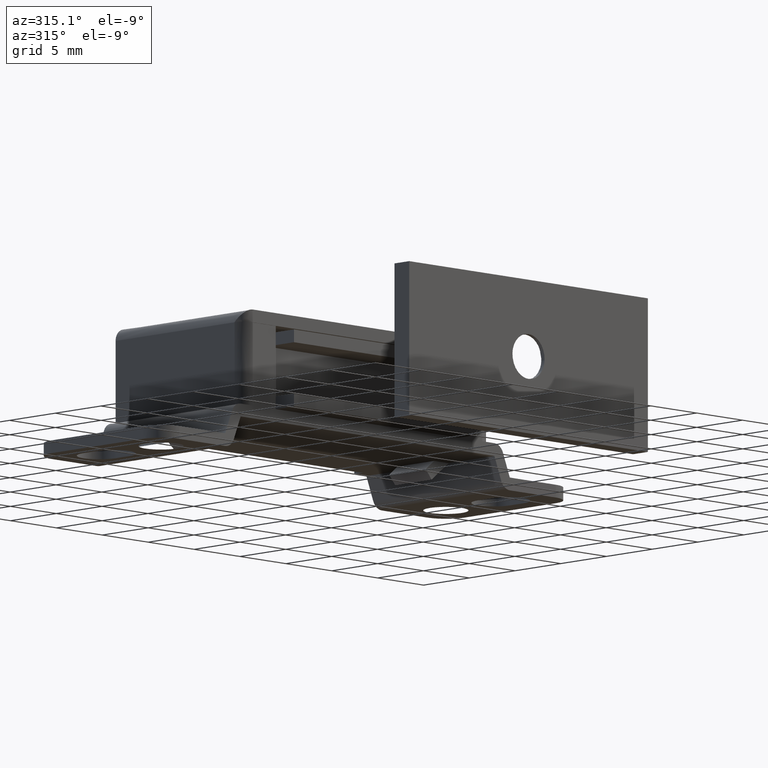
[diagram: clean part render]
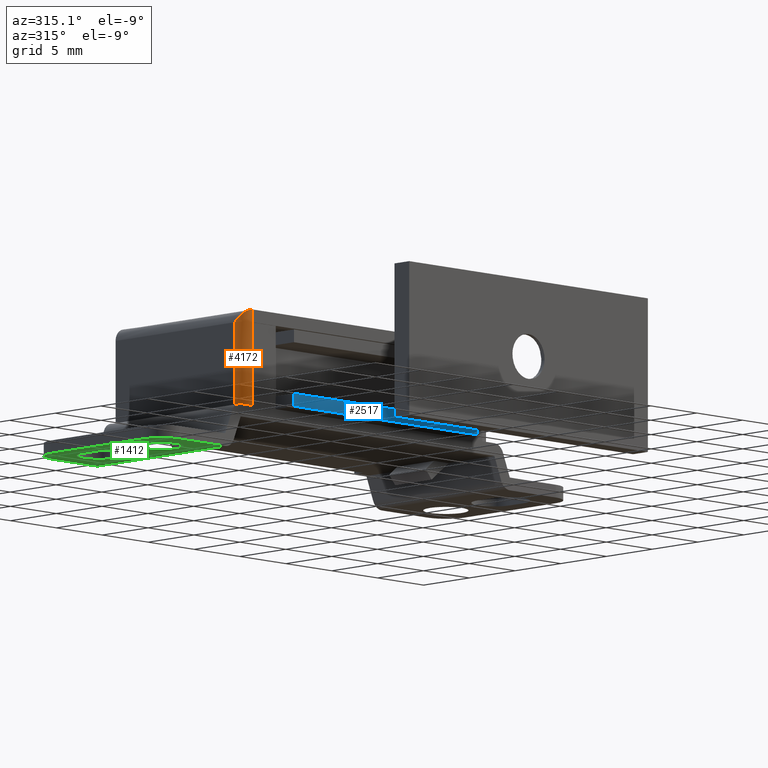
[diagram: same view with three faces highlighted in distinct colors, each labeled with its STEP entity id]
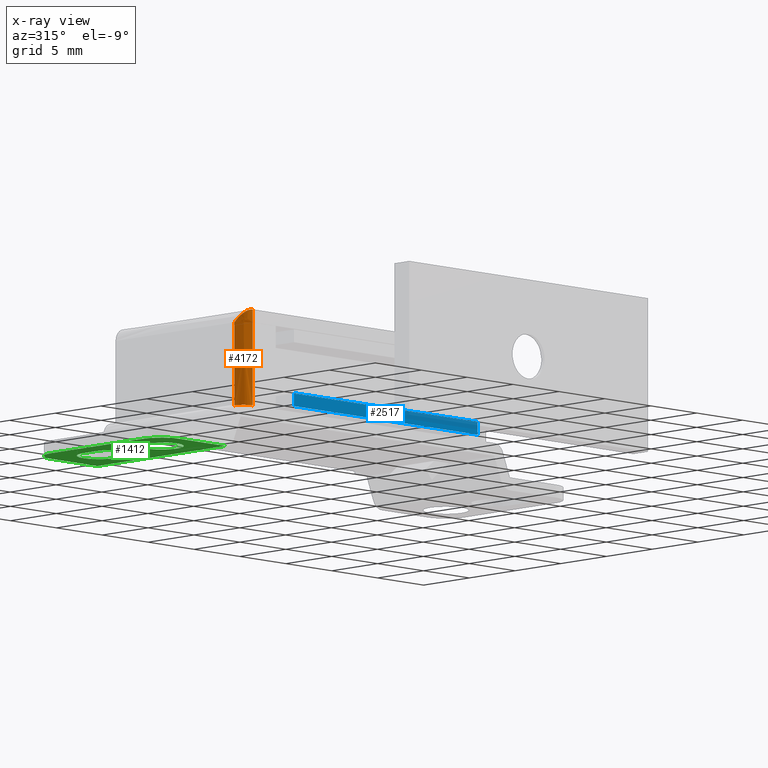
[diagram: x-ray of the same camera — body ghosted, the three highlighted faces saturated]
A machine part, auxiliary view with three faces highlighted in distinct colors.
The next image is the same camera in x-ray (body ghosted, the three faces saturated) — at least one of them is partly hidden behind the body in this view.
Their STEP definitions:

[orange] entity #4172 — the highlighted face is a freeform B-spline surface patch.
#3617=CARTESIAN_POINT('',(-13.500000000000000,-13.0,3.499999999999885));
#3618=VERTEX_POINT('',#3617);
#3624=CARTESIAN_POINT('',(-13.500000000000000,-13.0,9.999999999999890));
#3625=VERTEX_POINT('',#3624);
#3626=CARTESIAN_POINT('',(-13.500000000000000,-13.0,3.499999999999885));
#3627=CARTESIAN_POINT('',(-13.500000000000000,-13.0,9.999999999999890));
#3628=QUASI_UNIFORM_CURVE('',1,(#3626,#3627),.UNSPECIFIED.,.F.,.U.);
#3629=EDGE_CURVE('',#3618,#3625,#3628,.T.);
#3848=CARTESIAN_POINT('',(-12.500000000000000,-14.0,3.499999999999885));
#3849=VERTEX_POINT('',#3848);
#3855=CARTESIAN_POINT('',(-12.500000000000000,-14.0,3.499999999999885));
#3856=CARTESIAN_POINT('',(-13.500000000000002,-13.999999999999998,3.499999999999885));
#3857=CARTESIAN_POINT('',(-13.500000000000000,-13.0,3.499999999999885));
#3865=(BOUNDED_CURVE()B_SPLINE_CURVE(2,(#3855,#3856,#3857),.UNSPECIFIED.,.F.,.U.)CURVE()GEOMETRIC_REPRESENTATION_ITEM()QUASI_UNIFORM_CURVE()RATIONAL_B_SPLINE_CURVE((1.0,0.707106781186548,1.0))REPRESENTATION_ITEM(''));
#3866=EDGE_CURVE('',#3849,#3618,#3865,.T.);
#4013=CARTESIAN_POINT('',(-12.500000000000000,-14.0,9.990000000000000));
#4014=VERTEX_POINT('',#4013);
#4020=CARTESIAN_POINT('',(-12.500000000000000,-14.0,9.990000000000000));
#4021=CARTESIAN_POINT('',(-12.500000000000000,-14.0,3.499999999999885));
#4022=QUASI_UNIFORM_CURVE('',1,(#4020,#4021),.UNSPECIFIED.,.F.,.U.);
#4023=EDGE_CURVE('',#4014,#3849,#4022,.T.);
#4124=CARTESIAN_POINT('',(-12.491273464501630,-13.999961923064170,3.312499999999881));
#4125=CARTESIAN_POINT('',(-12.491273464501630,-13.999961923064170,11.192187499999999));
#4126=CARTESIAN_POINT('',(-13.563601342011749,-14.009319986679548,3.312499999999881));
#4127=CARTESIAN_POINT('',(-13.563601342011749,-14.009319986679548,11.192187500000003));
#4128=CARTESIAN_POINT('',(-13.498134798421869,-12.938951460465150,3.312499999999881));
#4129=CARTESIAN_POINT('',(-13.498134798421869,-12.938951460465150,11.192187499999999));
#4137=(BOUNDED_SURFACE()B_SPLINE_SURFACE(1,2,((#4124,#4126,#4128),(#4125,#4127,#4129)),.UNSPECIFIED.,.F.,.F.,.U.)B_SPLINE_SURFACE_WITH_KNOTS((2,2),(3,3),(0.0,7.879687500000122),(0.0,1.0),.UNSPECIFIED.)GEOMETRIC_REPRESENTATION_ITEM()RATIONAL_B_SPLINE_SURFACE(((1.0,0.681998360062499,1.0),(1.0,0.681998360062499,1.0)))REPRESENTATION_ITEM('')SURFACE());
#4138=CARTESIAN_POINT('',(-12.500000000000000,-14.0,10.0));
#4139=VERTEX_POINT('',#4138);
#4140=CARTESIAN_POINT('',(-12.500000000000000,-14.0,9.990000000000000));
#4141=CARTESIAN_POINT('',(-12.500000000000000,-14.0,10.0));
#4142=QUASI_UNIFORM_CURVE('',1,(#4140,#4141),.UNSPECIFIED.,.F.,.U.);
#4143=EDGE_CURVE('',#4014,#4139,#4142,.T.);
#4144=ORIENTED_EDGE('',*,*,#4143,.T.);
#4145=CARTESIAN_POINT('',(-12.500000000000000,-14.0,11.0));
#4146=VERTEX_POINT('',#4145);
#4147=CARTESIAN_POINT('',(-12.500000000000000,-14.0,11.0));
#4148=CARTESIAN_POINT('',(-12.500000000000000,-14.0,10.0));
#4149=QUASI_UNIFORM_CURVE('',1,(#4147,#4148),.UNSPECIFIED.,.F.,.U.);
#4150=EDGE_CURVE('',#4146,#4139,#4149,.T.);
#4151=ORIENTED_EDGE('',*,*,#4150,.F.);
#4152=CARTESIAN_POINT('',(-12.500000000000000,-14.0,11.0));
#4153=CARTESIAN_POINT('',(-12.564676171611680,-14.000033223644831,11.000033223644820));
#4154=CARTESIAN_POINT('',(-12.669042350168059,-13.989701361243350,10.989701361243320));
#4155=CARTESIAN_POINT('',(-12.804963741871020,-13.954652408133439,10.954652408133370));
#4156=CARTESIAN_POINT('',(-12.936451328718800,-13.904149071580230,10.904149071580150));
#4157=CARTESIAN_POINT('',(-13.056893391444900,-13.835079108966280,10.835079108966170));
#4158=CARTESIAN_POINT('',(-13.186592990725460,-13.732758960269329,10.732758960269219));
#4159=CARTESIAN_POINT('',(-13.298542779341281,-13.611538003574241,10.611538003574131));
#4160=CARTESIAN_POINT('',(-13.387450333245280,-13.469660585897930,10.469660585897831));
#4161=CARTESIAN_POINT('',(-13.474154957618140,-13.267435118238261,10.267435118238151));
#4162=CARTESIAN_POINT('',(-13.499919762725391,-13.112515500310700,10.112515500310581));
#4163=CARTESIAN_POINT('',(-13.500000000000000,-13.0,9.999999999999890));
#4164=B_SPLINE_CURVE_WITH_KNOTS('',3,(#4152,#4153,#4154,#4155,#4156,#4157,#4158,#4159,#4160,#4161,#4162,#4163),.UNSPECIFIED.,.F.,.U.,(4,1,1,1,1,1,1,1,1,4),(0.000015991426541,0.193995595818867,0.313377042324291,0.432766626589720,0.641687872820952,0.775997290653870,1.014738149325299,1.253505601452981,1.432592276846958,1.910124623667986),.UNSPECIFIED.);
#4165=EDGE_CURVE('',#4146,#3625,#4164,.T.);
#4166=ORIENTED_EDGE('',*,*,#4165,.T.);
#4167=ORIENTED_EDGE('',*,*,#3629,.F.);
#4168=ORIENTED_EDGE('',*,*,#3866,.F.);
#4169=ORIENTED_EDGE('',*,*,#4023,.F.);
#4170=EDGE_LOOP('',(#4144,#4151,#4166,#4167,#4168,#4169));
#4171=FACE_OUTER_BOUND('',#4170,.T.);
#4172=ADVANCED_FACE('',(#4171),#4137,.T.);

[blue] entity #2517 — the highlighted face is a freeform B-spline surface patch.
#2482=CARTESIAN_POINT('',(-10.999000161036109,-16.0,4.549949998061805));
#2483=CARTESIAN_POINT('',(10.999004697478020,-16.0,4.549949998061805));
#2484=CARTESIAN_POINT('',(-10.999000161036109,-16.0,3.450049975116103));
#2485=CARTESIAN_POINT('',(10.999004697478020,-16.0,3.450049975116103));
#2486=B_SPLINE_SURFACE_WITH_KNOTS('',1,1,((#2482,#2484),(#2483,#2485)),.UNSPECIFIED.,.F.,.F.,.U.,(2,2),(2,2),(0.0,21.998004858514129),(0.041708334948495,0.958291687403247),.UNSPECIFIED.);
#2487=CARTESIAN_POINT('',(10.000004000000001,-16.0,3.500000000000000));
#2488=VERTEX_POINT('',#2487);
#2489=CARTESIAN_POINT('',(-10.0,-16.0,3.500000000000000));
#2490=VERTEX_POINT('',#2489);
#2491=CARTESIAN_POINT('',(10.000004000000001,-16.0,3.500000000000000));
#2492=CARTESIAN_POINT('',(-10.0,-16.0,3.500000000000000));
#2493=QUASI_UNIFORM_CURVE('',1,(#2491,#2492),.UNSPECIFIED.,.F.,.U.);
#2494=EDGE_CURVE('',#2488,#2490,#2493,.T.);
#2495=ORIENTED_EDGE('',*,*,#2494,.F.);
#2496=CARTESIAN_POINT('',(10.000004000000001,-16.0,4.500000000000000));
#2497=VERTEX_POINT('',#2496);
#2498=CARTESIAN_POINT('',(10.000004000000001,-16.0,4.500000000000000));
#2499=CARTESIAN_POINT('',(10.000004000000001,-16.0,3.500000000000000));
#2500=QUASI_UNIFORM_CURVE('',1,(#2498,#2499),.UNSPECIFIED.,.F.,.U.);
#2501=EDGE_CURVE('',#2497,#2488,#2500,.T.);
#2502=ORIENTED_EDGE('',*,*,#2501,.F.);
#2503=CARTESIAN_POINT('',(-10.0,-16.0,4.500000000000000));
#2504=VERTEX_POINT('',#2503);
#2505=CARTESIAN_POINT('',(-10.0,-16.0,4.500000000000000));
#2506=CARTESIAN_POINT('',(10.000004000000001,-16.0,4.500000000000000));
#2507=QUASI_UNIFORM_CURVE('',1,(#2505,#2506),.UNSPECIFIED.,.F.,.U.);
#2508=EDGE_CURVE('',#2504,#2497,#2507,.T.);
#2509=ORIENTED_EDGE('',*,*,#2508,.F.);
#2510=CARTESIAN_POINT('',(-10.0,-16.0,3.500000000000000));
#2511=CARTESIAN_POINT('',(-10.0,-16.0,4.500000000000000));
#2512=QUASI_UNIFORM_CURVE('',1,(#2510,#2511),.UNSPECIFIED.,.F.,.U.);
#2513=EDGE_CURVE('',#2490,#2504,#2512,.T.);
#2514=ORIENTED_EDGE('',*,*,#2513,.F.);
#2515=EDGE_LOOP('',(#2495,#2502,#2509,#2514));
#2516=FACE_OUTER_BOUND('',#2515,.T.);
#2517=ADVANCED_FACE('',(#2516),#2486,.F.);

[green] entity #1412 — the highlighted face is a freeform B-spline surface patch.
#556=CARTESIAN_POINT('',(-15.499999361439301,0.0,-5.684342E-014));
#557=VERTEX_POINT('',#556);
#571=CARTESIAN_POINT('',(-20.499998000000001,0.0,-5.684342E-014));
#572=VERTEX_POINT('',#571);
#573=CARTESIAN_POINT('',(-15.499999361439301,0.0,-5.684342E-014));
#574=CARTESIAN_POINT('',(-20.499998000000001,0.0,-5.684342E-014));
#575=QUASI_UNIFORM_CURVE('',1,(#573,#574),.UNSPECIFIED.,.F.,.U.);
#576=EDGE_CURVE('',#557,#572,#575,.T.);
#737=CARTESIAN_POINT('',(-15.499999361439301,-14.0,-5.684342E-014));
#738=VERTEX_POINT('',#737);
#739=CARTESIAN_POINT('',(-20.499998000000001,-14.0,-5.684342E-014));
#740=VERTEX_POINT('',#739);
#741=CARTESIAN_POINT('',(-15.499999361439301,-14.0,-5.684342E-014));
#742=CARTESIAN_POINT('',(-20.499998000000001,-14.0,-5.684342E-014));
#743=QUASI_UNIFORM_CURVE('',1,(#741,#742),.UNSPECIFIED.,.F.,.U.);
#744=EDGE_CURVE('',#738,#740,#743,.T.);
#1230=CARTESIAN_POINT('',(-15.499999361439301,0.0,-5.684342E-014));
#1231=CARTESIAN_POINT('',(-15.499999361439301,-14.0,-5.684342E-014));
#1232=QUASI_UNIFORM_CURVE('',1,(#1230,#1231),.UNSPECIFIED.,.F.,.U.);
#1233=EDGE_CURVE('',#557,#738,#1232,.T.);
#1238=CARTESIAN_POINT('',(-22.849647918428762,-14.699299972865290,-5.684342E-014));
#1239=CARTESIAN_POINT('',(-15.150349255255950,-14.699299972865290,-5.684342E-014));
#1240=CARTESIAN_POINT('',(-22.849647918428762,0.699300348374546,-5.684342E-014));
#1241=CARTESIAN_POINT('',(-15.150349255255950,0.699300348374546,-5.684342E-014));
#1242=B_SPLINE_SURFACE_WITH_KNOTS('',1,1,((#1238,#1240),(#1239,#1241)),.UNSPECIFIED.,.F.,.F.,.U.,(2,2),(2,2),(0.0,7.699298663172804),(0.0,15.398600321239829),.UNSPECIFIED.);
#1243=ORIENTED_EDGE('',*,*,#576,.F.);
#1244=ORIENTED_EDGE('',*,*,#1233,.T.);
#1245=ORIENTED_EDGE('',*,*,#744,.T.);
#1246=CARTESIAN_POINT('',(-22.499998000000001,-12.0,-5.684342E-014));
#1247=VERTEX_POINT('',#1246);
#1248=CARTESIAN_POINT('',(-20.499998000000001,-14.0,-5.684342E-014));
#1249=CARTESIAN_POINT('',(-22.499998000000001,-13.999999999999998,-5.684342E-014));
#1250=CARTESIAN_POINT('',(-22.499998000000001,-12.0,-5.684342E-014));
#1258=(BOUNDED_CURVE()B_SPLINE_CURVE(2,(#1248,#1249,#1250),.UNSPECIFIED.,.F.,.U.)CURVE()GEOMETRIC_REPRESENTATION_ITEM()QUASI_UNIFORM_CURVE()RATIONAL_B_SPLINE_CURVE((1.0,0.707106781186548,1.0))REPRESENTATION_ITEM(''));
#1259=EDGE_CURVE('',#740,#1247,#1258,.T.);
#1260=ORIENTED_EDGE('',*,*,#1259,.T.);
#1261=CARTESIAN_POINT('',(-22.499998000000001,-2.0,-5.684342E-014));
#1262=VERTEX_POINT('',#1261);
#1263=CARTESIAN_POINT('',(-22.499998000000001,-2.0,-5.684342E-014));
#1264=CARTESIAN_POINT('',(-22.499998000000001,-12.0,-5.684342E-014));
#1265=QUASI_UNIFORM_CURVE('',1,(#1263,#1264),.UNSPECIFIED.,.F.,.U.);
#1266=EDGE_CURVE('',#1262,#1247,#1265,.T.);
#1267=ORIENTED_EDGE('',*,*,#1266,.F.);
#1268=CARTESIAN_POINT('',(-22.499998000000001,-2.0,-5.684342E-014));
#1269=CARTESIAN_POINT('',(-22.499998000000001,0.0,-5.684342E-014));
#1270=CARTESIAN_POINT('',(-20.499998000000001,0.0,-5.684342E-014));
#1278=(BOUNDED_CURVE()B_SPLINE_CURVE(2,(#1268,#1269,#1270),.UNSPECIFIED.,.F.,.U.)CURVE()GEOMETRIC_REPRESENTATION_ITEM()QUASI_UNIFORM_CURVE()RATIONAL_B_SPLINE_CURVE((1.0,0.707106781186548,1.0))REPRESENTATION_ITEM(''));
#1279=EDGE_CURVE('',#1262,#572,#1278,.T.);
#1280=ORIENTED_EDGE('',*,*,#1279,.T.);
#1281=EDGE_LOOP('',(#1243,#1244,#1245,#1260,#1267,#1280));
#1282=FACE_OUTER_BOUND('',#1281,.T.);
#1283=CARTESIAN_POINT('',(-17.250000000000000,-5.250022000000000,-1.110223E-013));
#1284=VERTEX_POINT('',#1283);
#1285=CARTESIAN_POINT('',(-20.750000000000000,-5.250022000000000,-1.110223E-013));
#1286=VERTEX_POINT('',#1285);
#1287=CARTESIAN_POINT('',(-17.250000000000000,-5.250022000000000,-1.110223E-013));
#1288=CARTESIAN_POINT('',(-17.249983640224599,-5.371710527814620,-1.110223E-013));
#1289=CARTESIAN_POINT('',(-17.276233001831152,-5.622253057960212,-1.110223E-013));
#1290=CARTESIAN_POINT('',(-17.404964547119199,-6.012089480272649,-1.110223E-013));
#1291=CARTESIAN_POINT('',(-17.598211148096411,-6.317250049386747,-1.110223E-013));
#1292=CARTESIAN_POINT('',(-17.835631410701041,-6.566558406861176,-1.110223E-013));
#1293=CARTESIAN_POINT('',(-18.098944625255871,-6.766952813935252,-1.110223E-013));
#1294=CARTESIAN_POINT('',(-18.407156060241789,-6.908102653144817,-1.110223E-013));
#1295=CARTESIAN_POINT('',(-18.755675899257341,-6.993125876153244,-1.110223E-013));
#1296=CARTESIAN_POINT('',(-19.079497948960309,-7.011036898469041,-1.110223E-013));
#1297=CARTESIAN_POINT('',(-19.392087789799650,-6.962679795469162,-1.110223E-013));
#1298=CARTESIAN_POINT('',(-19.665582220224120,-6.876035882493071,-1.110223E-013));
#1299=CARTESIAN_POINT('',(-19.955454006251340,-6.732392006636990,-1.110223E-013));
#1300=CARTESIAN_POINT('',(-20.225737593787329,-6.516053418567593,-1.110223E-013));
#1301=CARTESIAN_POINT('',(-20.464416699580099,-6.228835173448712,-1.110223E-013));
#1302=CARTESIAN_POINT('',(-20.612179607955738,-5.956416723379938,-1.110223E-013));
#1303=CARTESIAN_POINT('',(-20.722603426632890,-5.615085311462335,-1.110223E-013));
#1304=CARTESIAN_POINT('',(-20.750040571649599,-5.393193128633605,-1.110223E-013));
#1305=CARTESIAN_POINT('',(-20.750000000000000,-5.250022000000000,-1.110223E-013));
#1306=B_SPLINE_CURVE_WITH_KNOTS('',3,(#1287,#1288,#1289,#1290,#1291,#1292,#1293,#1294,#1295,#1296,#1297,#1298,#1299,#1300,#1301,#1302,#1303,#1304,#1305),.UNSPECIFIED.,.F.,.U.,(4,1,1,1,1,1,1,1,1,1,1,1,1,1,1,1,4),(0.000000160204573,0.365066316057039,0.751650532482897,1.224123691269670,1.438884453423977,1.782509374017940,2.212034281443974,2.448272649888494,2.856264789557835,3.178422961934867,3.393181899591150,3.715324589631690,4.144842942004722,4.424037368959461,4.832074703794198,5.068319624490617,5.497821640109536),.UNSPECIFIED.);
#1307=EDGE_CURVE('',#1284,#1286,#1306,.T.);
#1308=ORIENTED_EDGE('',*,*,#1307,.F.);
#1309=CARTESIAN_POINT('',(-17.250000000000000,-3.750011000000055,-5.684342E-014));
#1310=VERTEX_POINT('',#1309);
#1311=CARTESIAN_POINT('',(-17.250000000000000,-3.750011000000055,-5.684342E-014));
#1312=CARTESIAN_POINT('',(-17.250000000000000,-5.250022000000000,-1.110223E-013));
#1313=QUASI_UNIFORM_CURVE('',1,(#1311,#1312),.UNSPECIFIED.,.F.,.U.);
#1314=EDGE_CURVE('',#1310,#1284,#1313,.T.);
#1315=ORIENTED_EDGE('',*,*,#1314,.F.);
#1316=CARTESIAN_POINT('',(-20.750000000000000,-3.750011000000000,-1.110223E-013));
#1317=VERTEX_POINT('',#1316);
#1318=CARTESIAN_POINT('',(-20.750000000000000,-3.750011000000000,-1.110223E-013));
#1319=CARTESIAN_POINT('',(-20.750071564311710,-3.585356476106893,-1.110223E-013));
#1320=CARTESIAN_POINT('',(-20.715380724017962,-3.342013446809775,-1.110223E-013));
#1321=CARTESIAN_POINT('',(-20.582634698688800,-2.978008368812442,-1.110223E-013));
#1322=CARTESIAN_POINT('',(-20.415771575950849,-2.699630703921534,-1.110223E-013));
#1323=CARTESIAN_POINT('',(-20.151691818465618,-2.415348245961402,-1.110223E-013));
#1324=CARTESIAN_POINT('',(-19.821482567027669,-2.182733211205057,-1.110223E-013));
#1325=CARTESIAN_POINT('',(-19.455817556361460,-2.046842744358447,-1.110223E-013));
#1326=CARTESIAN_POINT('',(-19.107898833436899,-1.995278037865331,-1.110223E-013));
#1327=CARTESIAN_POINT('',(-18.762884030766251,-2.001581059160034,-1.110223E-013));
#1328=CARTESIAN_POINT('',(-18.405260383444940,-2.088842876017416,-1.110225E-013));
#1329=CARTESIAN_POINT('',(-18.063883160865569,-2.258081325113297,-1.110218E-013));
#1330=CARTESIAN_POINT('',(-17.818730793066489,-2.446996452003429,-1.119564E-013));
#1331=CARTESIAN_POINT('',(-17.585871847336701,-2.700754054114437,-1.041165E-013));
#1332=CARTESIAN_POINT('',(-17.404243772407799,-2.995487802614693,-1.325758E-013));
#1333=CARTESIAN_POINT('',(-17.277796631127611,-3.370624431601887,-7.168514E-014));
#1334=CARTESIAN_POINT('',(-17.249979605022070,-3.621157579292920,-1.565577E-013));
#1335=CARTESIAN_POINT('',(-17.250000000000000,-3.750011000000055,-5.684342E-014));
#1336=B_SPLINE_CURVE_WITH_KNOTS('',3,(#1318,#1319,#1320,#1321,#1322,#1323,#1324,#1325,#1326,#1327,#1328,#1329,#1330,#1331,#1332,#1333,#1334,#1335),.UNSPECIFIED.,.F.,.U.,(4,1,1,1,1,1,1,1,1,1,1,1,1,1,1,4),(0.000000160281329,0.493937782224061,0.730162777164898,1.159692485568091,1.460362362691002,1.889891436264073,2.362353758009506,2.620064527809292,2.942189646093841,3.393181899619400,3.715324589655351,4.080414860488826,4.316655019720658,4.746183528143403,5.111263573674432,5.497821640109159),.UNSPECIFIED.);
#1337=EDGE_CURVE('',#1317,#1310,#1336,.T.);
#1338=ORIENTED_EDGE('',*,*,#1337,.F.);
#1339=CARTESIAN_POINT('',(-20.750000000000000,-5.250022000000000,-1.110223E-013));
#1340=CARTESIAN_POINT('',(-20.750000000000000,-3.750011000000000,-1.110223E-013));
#1341=QUASI_UNIFORM_CURVE('',1,(#1339,#1340),.UNSPECIFIED.,.F.,.U.);
#1342=EDGE_CURVE('',#1286,#1317,#1341,.T.);
#1343=ORIENTED_EDGE('',*,*,#1342,.F.);
#1344=EDGE_LOOP('',(#1308,#1315,#1338,#1343));
#1345=FACE_BOUND('',#1344,.T.);
#1346=CARTESIAN_POINT('',(-17.250000000000000,-10.499994000000020,-1.110223E-013));
#1347=VERTEX_POINT('',#1346);
#1348=CARTESIAN_POINT('',(-18.984728562710998,-12.249927365360859,-1.110587E-013));
#1349=VERTEX_POINT('',#1348);
#1350=CARTESIAN_POINT('',(-17.250000000000000,-10.499994000000020,-1.110223E-013));
#1351=CARTESIAN_POINT('',(-17.250000000000004,-12.234788618375825,-1.110223E-013));
#1352=CARTESIAN_POINT('',(-18.984728562711002,-12.249927365360863,-1.110223E-013));
#1360=(BOUNDED_CURVE()B_SPLINE_CURVE(2,(#1350,#1351,#1352),.UNSPECIFIED.,.F.,.U.)B_SPLINE_CURVE_WITH_KNOTS((3,3),(0.0,0.248460105648219),.UNSPECIFIED.)CURVE()GEOMETRIC_REPRESENTATION_ITEM()RATIONAL_B_SPLINE_CURVE((1.0,0.708910879639851,0.996414028061539))REPRESENTATION_ITEM(''));
#1361=EDGE_CURVE('',#1347,#1349,#1360,.T.);
#1362=ORIENTED_EDGE('',*,*,#1361,.F.);
#1363=CARTESIAN_POINT('',(-19.015271437289002,-8.750060634639176,-1.110566E-013));
#1364=VERTEX_POINT('',#1363);
#1365=CARTESIAN_POINT('',(-19.015271437289005,-8.750060634639178,-1.110181E-013));
#1366=CARTESIAN_POINT('',(-19.007635864019658,-8.749994000000021,-1.110223E-013));
#1367=CARTESIAN_POINT('',(-19.0,-8.749994000000021,-1.110223E-013));
#1368=CARTESIAN_POINT('',(-17.249999999999996,-8.749994000000021,-1.110223E-013));
#1369=CARTESIAN_POINT('',(-17.250000000000000,-10.499994000000020,-1.110223E-013));
#1377=(BOUNDED_CURVE()B_SPLINE_CURVE(2,(#1365,#1366,#1367,#1368,#1369),.UNSPECIFIED.,.F.,.U.)B_SPLINE_CURVE_WITH_KNOTS((3,2,3),(0.748460105648219,0.750000000000000,1.0),.UNSPECIFIED.)CURVE()GEOMETRIC_REPRESENTATION_ITEM()RATIONAL_B_SPLINE_CURVE((0.996414028061539,0.998195901546696,1.0,0.707106781186547,1.0))REPRESENTATION_ITEM(''));
#1378=EDGE_CURVE('',#1364,#1347,#1377,.T.);
#1379=ORIENTED_EDGE('',*,*,#1378,.F.);
#1380=CARTESIAN_POINT('',(-20.750000000000000,-10.499994000000020,0.0));
#1381=VERTEX_POINT('',#1380);
#1382=CARTESIAN_POINT('',(-20.750000000000000,-10.499994000000020,0.0));
#1383=CARTESIAN_POINT('',(-20.750000000000000,-8.765199381624223,-1.100577E-013));
#1384=CARTESIAN_POINT('',(-19.015271437289012,-8.750060634639178,-1.110181E-013));
#1392=(BOUNDED_CURVE()B_SPLINE_CURVE(2,(#1382,#1383,#1384),.UNSPECIFIED.,.F.,.U.)B_SPLINE_CURVE_WITH_KNOTS((3,3),(0.500000000000000,0.748460105648218),.UNSPECIFIED.)CURVE()GEOMETRIC_REPRESENTATION_ITEM()RATIONAL_B_SPLINE_CURVE((1.0,0.708910879639852,0.996414028061538))REPRESENTATION_ITEM(''));
#1393=EDGE_CURVE('',#1381,#1364,#1392,.T.);
#1394=ORIENTED_EDGE('',*,*,#1393,.F.);
#1395=CARTESIAN_POINT('',(-18.984728562710998,-12.249927365360865,-1.110223E-013));
#1396=CARTESIAN_POINT('',(-18.992364135980345,-12.249994000000020,-1.110223E-013));
#1397=CARTESIAN_POINT('',(-19.0,-12.249994000000020,-1.110223E-013));
#1398=CARTESIAN_POINT('',(-20.750000000000000,-12.249994000000022,-1.110223E-013));
#1399=CARTESIAN_POINT('',(-20.750000000000000,-10.499994000000020,-1.110223E-013));
#1407=(BOUNDED_CURVE()B_SPLINE_CURVE(2,(#1395,#1396,#1397,#1398,#1399),.UNSPECIFIED.,.F.,.U.)B_SPLINE_CURVE_WITH_KNOTS((3,2,3),(0.248460105648218,0.250000000000000,0.500000000000000),.UNSPECIFIED.)CURVE()GEOMETRIC_REPRESENTATION_ITEM()RATIONAL_B_SPLINE_CURVE((0.996414028061539,0.998195901546696,1.0,0.707106781186547,1.0))REPRESENTATION_ITEM(''));
#1408=EDGE_CURVE('',#1349,#1381,#1407,.T.);
#1409=ORIENTED_EDGE('',*,*,#1408,.F.);
#1410=EDGE_LOOP('',(#1362,#1379,#1394,#1409));
#1411=FACE_BOUND('',#1410,.T.);
#1412=ADVANCED_FACE('',(#1282,#1345,#1411),#1242,.F.);